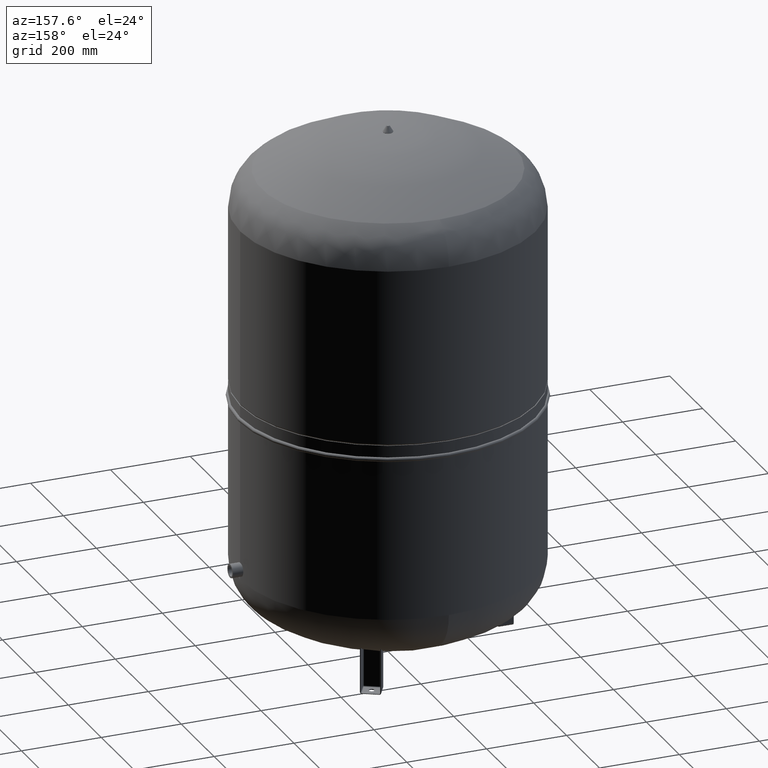
[diagram: clean part render]
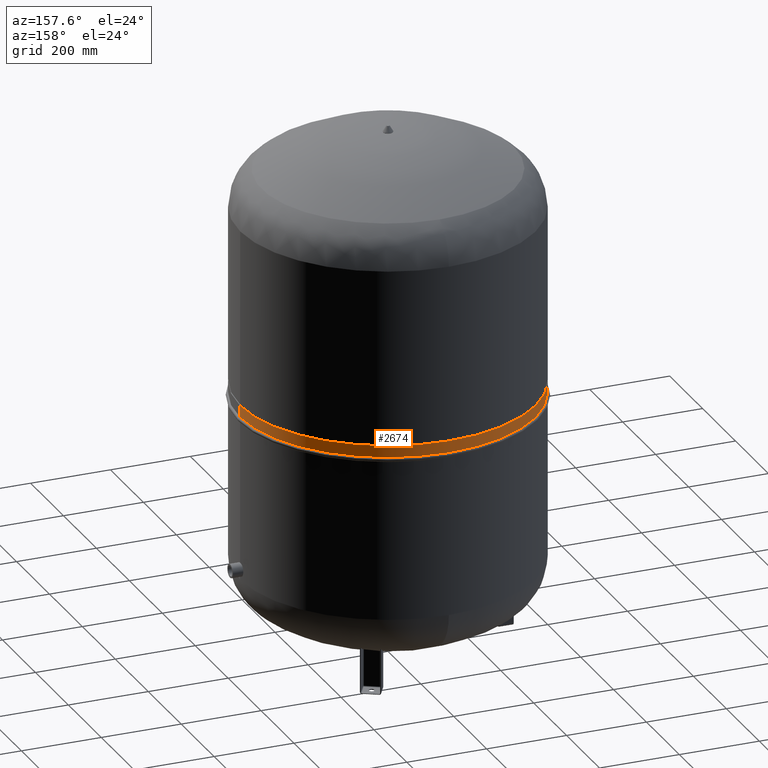
[diagram: same view with one face highlighted and labeled with its STEP entity id]
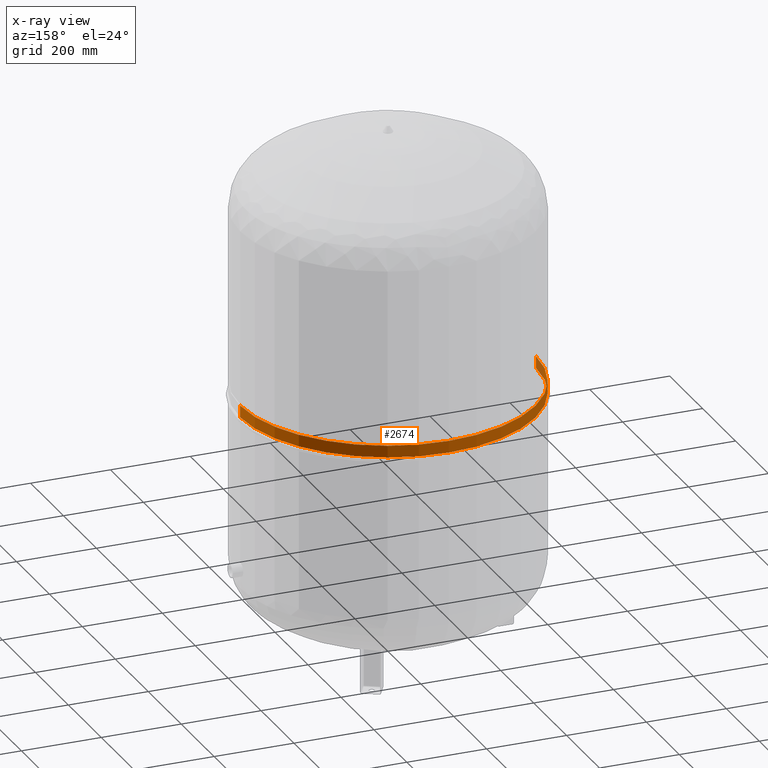
[diagram: x-ray of the same camera — body ghosted, the highlighted face saturated]
A machine part, auxiliary view. The second image highlights one B-rep face of the part: STEP entity #2674.
The next image is the same camera in x-ray: the body ghosted, the highlighted face saturated — about 2% of this face is hidden behind the body in this view.
In plain terms, the highlighted cylindrical surface (partial cylindrical patch) has radius 370 mm, axis along (-0, 0, 1).
Its self-contained STEP definition (entity closure, byte-faithful):
#2502=CARTESIAN_POINT('',(369.999999999999770,0.0,660.0));
#2503=VERTEX_POINT('',#2502);
#2504=CARTESIAN_POINT('',(369.999999999999770,0.0,630.449999999999930));
#2505=VERTEX_POINT('',#2504);
#2506=CARTESIAN_POINT('',(369.999999999999770,0.0,660.0));
#2507=DIRECTION('',(0.0,0.0,-1.0));
#2508=VECTOR('',#2507,29.550000000000068);
#2509=LINE('',#2506,#2508);
#2510=EDGE_CURVE('',#2503,#2505,#2509,.T.);
#2512=CARTESIAN_POINT('',(-369.999999999999770,-4.531044E-014,660.0));
#2513=VERTEX_POINT('',#2512);
#2521=CARTESIAN_POINT('',(-369.999999999999770,-4.531044E-014,630.449999999999820));
#2522=VERTEX_POINT('',#2521);
#2523=CARTESIAN_POINT('',(-369.999999999999770,-4.531044E-014,660.0));
#2524=DIRECTION('',(0.0,0.0,-1.0));
#2525=VECTOR('',#2524,29.550000000000182);
#2526=LINE('',#2523,#2525);
#2527=EDGE_CURVE('',#2513,#2522,#2526,.T.);
#2647=CARTESIAN_POINT('',(9.752123E-016,0.0,630.449999999999930));
#2648=DIRECTION('',(0.0,0.0,1.0));
#2649=DIRECTION('',(1.0,0.0,0.0));
#2650=AXIS2_PLACEMENT_3D('',#2647,#2648,#2649);
#2651=CIRCLE('',#2650,369.999999999999770);
#2652=EDGE_CURVE('',#2505,#2522,#2651,.T.);
#2657=CARTESIAN_POINT('',(4.876061E-016,0.0,645.224999999999910));
#2658=DIRECTION('',(-3.300211E-017,0.0,1.0));
#2659=DIRECTION('',(1.0,0.0,0.0));
#2660=AXIS2_PLACEMENT_3D('',#2657,#2658,#2659);
#2661=CYLINDRICAL_SURFACE('',#2660,369.999999999999770);
#2662=ORIENTED_EDGE('',*,*,#2510,.T.);
#2663=ORIENTED_EDGE('',*,*,#2652,.T.);
#2664=ORIENTED_EDGE('',*,*,#2527,.F.);
#2665=CARTESIAN_POINT('',(0.0,0.0,660.0));
#2666=DIRECTION('',(0.0,0.0,1.0));
#2667=DIRECTION('',(1.0,0.0,0.0));
#2668=AXIS2_PLACEMENT_3D('',#2665,#2666,#2667);
#2669=CIRCLE('',#2668,369.999999999999770);
#2670=EDGE_CURVE('',#2503,#2513,#2669,.T.);
#2671=ORIENTED_EDGE('',*,*,#2670,.F.);
#2672=EDGE_LOOP('',(#2662,#2663,#2664,#2671));
#2673=FACE_OUTER_BOUND('',#2672,.T.);
#2674=ADVANCED_FACE('',(#2673),#2661,.T.);